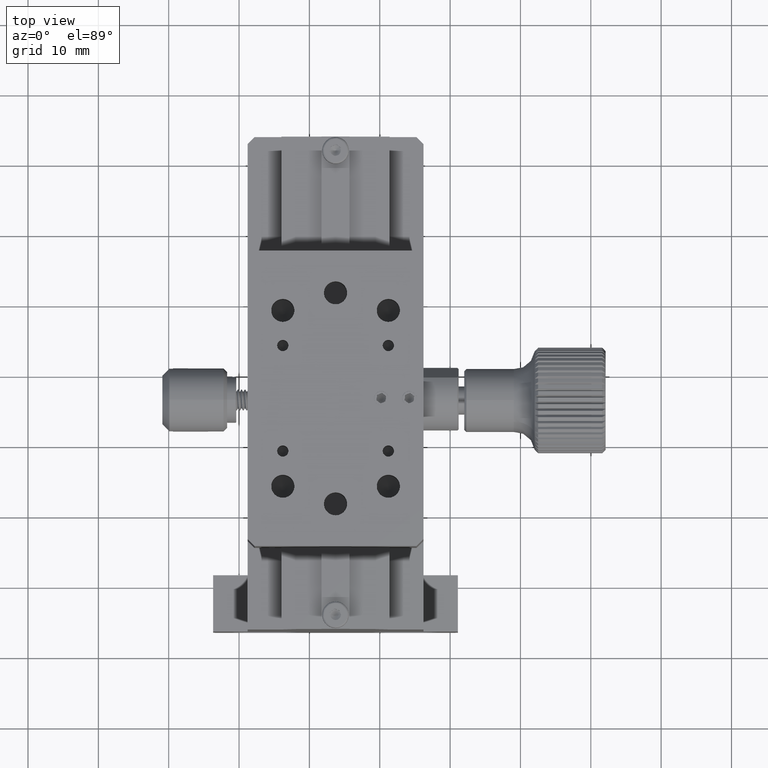
[diagram: clean part render]
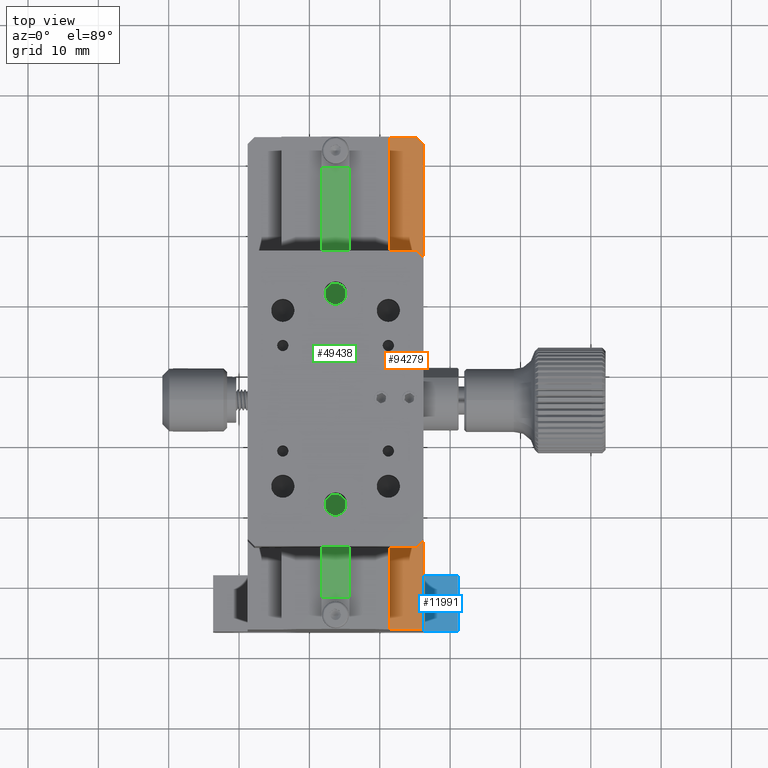
[diagram: same view with three faces highlighted in distinct colors, each labeled with its STEP entity id]
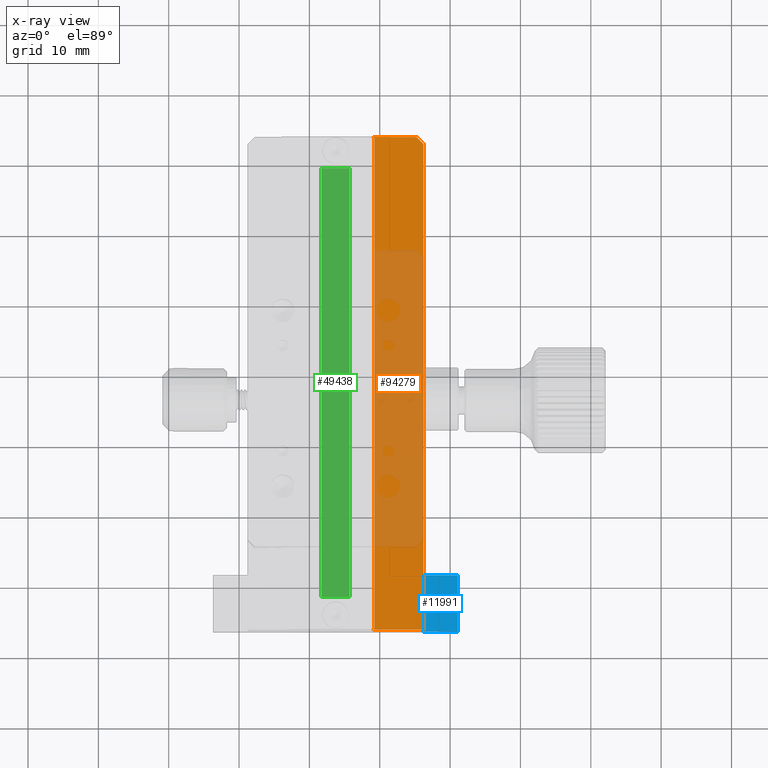
[diagram: x-ray of the same camera — body ghosted, the three highlighted faces saturated]
A machine part, top view with three faces highlighted in distinct colors.
The next image is the same camera in x-ray (body ghosted, the three faces saturated) — at least one of them is partly hidden behind the body in this view.
Their STEP definitions:

[orange] entity #94279 — the highlighted planar face has unit normal (-0, 0, -1).
#90 = CARTESIAN_POINT ( 'NONE',  ( 68.98022867608149511, 13.63550279078390126, 73.45689688578997334 ) ) ;
#8041 = CARTESIAN_POINT ( 'NONE',  ( 76.21116878375734416, 83.63550279078400251, 73.45689688578997334 ) ) ;
#8683 = CARTESIAN_POINT ( 'NONE',  ( 69.11551025906210555, 83.63550279078391725, 73.45689688579071230 ) ) ;
#9826 = CARTESIAN_POINT ( 'NONE',  ( 69.21116878375735837, 83.55266007830925901, 73.45689688579071230 ) ) ;
#12445 = CARTESIAN_POINT ( 'NONE',  ( 69.21116878375735837, 83.63550279078391725, 73.45689688579071230 ) ) ;
#12684 = LINE ( 'NONE', #49763, #64024 ) ;
#13996 = CARTESIAN_POINT ( 'NONE',  ( 69.21116878375735837, 83.63550279078391725, 73.45689688579071230 ) ) ;
#14966 = ORIENTED_EDGE ( 'NONE', *, *, #76726, .F. ) ;
#18908 = CARTESIAN_POINT ( 'NONE',  ( 69.11551025906210555, 13.63550279078390659, 73.45689688578997334 ) ) ;
#23339 = VECTOR ( 'NONE', #68917, 1000.000000000000114 ) ;
#25584 = CARTESIAN_POINT ( 'NONE',  ( 69.21116878375735837, 83.43550279078390020, 73.45689688579071230 ) ) ;
#26352 = CARTESIAN_POINT ( 'NONE',  ( 69.21116878375735837, 83.43550279078390020, 73.45689688579071230 ) ) ;
#27922 = CARTESIAN_POINT ( 'NONE',  ( 69.21116878375735837, 13.83550279078390055, 73.45689688578997334 ) ) ;
#31214 = CARTESIAN_POINT ( 'NONE',  ( 75.21116878375735837, 83.63550279078391725, 73.45689688579071230 ) ) ;
#32861 = VERTEX_POINT ( 'NONE', #54399 ) ;
#33535 = DIRECTION ( 'NONE',  ( -1.000000000000000000, 0.000000000000000000, -0.000000000000000000 ) ) ;
#34637 = EDGE_CURVE ( 'NONE', #82712, #52195, #86596, .T. ) ;
#41257 = PLANE ( 'NONE',  #100707 ) ;
#43573 = VERTEX_POINT ( 'NONE', #107302 ) ;
#46492 = EDGE_CURVE ( 'NONE', #43573, #32861, #12684, .T. ) ;
#47057 = VERTEX_POINT ( 'NONE', #25584 ) ;
#48318 =( BOUNDED_CURVE ( )  B_SPLINE_CURVE ( 3, ( #26352, #9826, #8683, #98813 ),
 .UNSPECIFIED., .F., .F. ) 
 B_SPLINE_CURVE_WITH_KNOTS ( ( 4, 4 ),
 ( 3.141592653589793116, 4.712388980384689674 ),
 .UNSPECIFIED. ) 
 CURVE ( )  GEOMETRIC_REPRESENTATION_ITEM ( )  RATIONAL_B_SPLINE_CURVE ( ( 1.000000000000000000, 0.8047378541243649375, 0.8047378541243649375, 1.000000000000000000 ) ) 
 REPRESENTATION_ITEM ( '' )  );
#49192 = DIRECTION ( 'NONE',  ( -1.000000000000000000, 0.000000000000000000, -0.000000000000000000 ) ) ;
#49763 = CARTESIAN_POINT ( 'NONE',  ( 63.71116878375735126, 13.63550279078389771, 73.45689688578997334 ) ) ;
#51305 = CARTESIAN_POINT ( 'NONE',  ( 76.21116878375734416, 82.63550279078391725, 73.45689688579021492 ) ) ;
#52195 = VERTEX_POINT ( 'NONE', #51305 ) ;
#54399 = CARTESIAN_POINT ( 'NONE',  ( 68.98022867608149511, 13.63550279078390126, 73.45689688578997334 ) ) ;
#55682 = LINE ( 'NONE', #8041, #63137 ) ;
#57219 = FACE_OUTER_BOUND ( 'NONE', #85102, .T. ) ;
#61690 = DIRECTION ( 'NONE',  ( 0.000000000000000000, 1.000000000000000000, 1.047444401652940007E-14 ) ) ;
#61931 = ORIENTED_EDGE ( 'NONE', *, *, #105516, .T. ) ;
#62528 = CARTESIAN_POINT ( 'NONE',  ( 69.21116878375735837, 13.71834550325852398, 73.45689688578997334 ) ) ;
#62678 = ORIENTED_EDGE ( 'NONE', *, *, #113930, .F. ) ;
#63137 = VECTOR ( 'NONE', #71666, 1000.000000000000000 ) ;
#64024 = VECTOR ( 'NONE', #49192, 1000.000000000000000 ) ;
#67143 = CARTESIAN_POINT ( 'NONE',  ( 63.71116878375735126, 83.63550279078390304, 73.45689688579071230 ) ) ;
#68373 = DIRECTION ( 'NONE',  ( 0.000000000000000000, 1.000000000000000000, 1.047444401652940007E-14 ) ) ;
#68917 = DIRECTION ( 'NONE',  ( 0.7071067811865474617, -0.7071067811865474617, -9.813077866773586595E-15 ) ) ;
#71376 = CARTESIAN_POINT ( 'NONE',  ( 69.21116878375735837, 13.83550279078390055, 73.45689688578997334 ) ) ;
#71666 = DIRECTION ( 'NONE',  ( -3.634052786655670085E-30, 1.000000000000000000, 1.260815336390105304E-45 ) ) ;
#72783 = VECTOR ( 'NONE', #33535, 1000.000000000000000 ) ;
#76067 = DIRECTION ( 'NONE',  ( -2.478176394252581141E-16, 1.047444401652940007E-14, -1.000000000000000000 ) ) ;
#76648 = VECTOR ( 'NONE', #61690, 1000.000000000000000 ) ;
#76726 = EDGE_CURVE ( 'NONE', #98917, #47057, #103556, .T. ) ;
#82712 = VERTEX_POINT ( 'NONE', #86588 ) ;
#85102 = EDGE_LOOP ( 'NONE', ( #106153, #112082, #62678, #14966, #110347, #96621, #61931 ) ) ;
#85147 =( BOUNDED_CURVE ( )  B_SPLINE_CURVE ( 3, ( #90, #18908, #62528, #71376 ),
 .UNSPECIFIED., .F., .T. ) 
 B_SPLINE_CURVE_WITH_KNOTS ( ( 4, 4 ),
 ( 4.712388980384689674, 6.283185307179586232 ),
 .UNSPECIFIED. ) 
 CURVE ( )  GEOMETRIC_REPRESENTATION_ITEM ( )  RATIONAL_B_SPLINE_CURVE ( ( 1.000000000000000000, 0.8047378541243649375, 0.8047378541243649375, 1.000000000000000000 ) ) 
 REPRESENTATION_ITEM ( '' )  );
#86588 = CARTESIAN_POINT ( 'NONE',  ( 75.21116878375735837, 83.63550279078391725, 73.45689688579071230 ) ) ;
#86596 = LINE ( 'NONE', #31214, #23339 ) ;
#87401 = EDGE_CURVE ( 'NONE', #32861, #98917, #85147, .T. ) ;
#88535 = EDGE_CURVE ( 'NONE', #82712, #114471, #114266, .T. ) ;
#90699 = CARTESIAN_POINT ( 'NONE',  ( 68.98022867608149511, 83.63550279078390304, 73.45689688579071230 ) ) ;
#94279 = ADVANCED_FACE ( 'NONE', ( #57219 ), #41257, .F. ) ;
#96621 = ORIENTED_EDGE ( 'NONE', *, *, #46492, .F. ) ;
#98813 = CARTESIAN_POINT ( 'NONE',  ( 68.98022867608149511, 83.63550279078390304, 73.45689688579071230 ) ) ;
#98917 = VERTEX_POINT ( 'NONE', #27922 ) ;
#100707 = AXIS2_PLACEMENT_3D ( 'NONE', #12445, #76067, #68373 ) ;
#103556 = LINE ( 'NONE', #13996, #76648 ) ;
#105516 = EDGE_CURVE ( 'NONE', #43573, #52195, #55682, .T. ) ;
#106153 = ORIENTED_EDGE ( 'NONE', *, *, #34637, .F. ) ;
#107302 = CARTESIAN_POINT ( 'NONE',  ( 76.21116878375734416, 13.63550279078401317, 73.45689688578997334 ) ) ;
#110347 = ORIENTED_EDGE ( 'NONE', *, *, #87401, .F. ) ;
#112082 = ORIENTED_EDGE ( 'NONE', *, *, #88535, .T. ) ;
#113930 = EDGE_CURVE ( 'NONE', #47057, #114471, #48318, .T. ) ;
#114266 = LINE ( 'NONE', #67143, #72783 ) ;
#114471 = VERTEX_POINT ( 'NONE', #90699 ) ;

[blue] entity #11991 — the highlighted planar face has unit normal (-0, 0, -1).
#2473 = EDGE_CURVE ( 'NONE', #59863, #4035, #81852, .T. ) ;
#2810 = CARTESIAN_POINT ( 'NONE',  ( 63.71116878375735126, 21.63550279078407002, 56.95689688579005860 ) ) ;
#4035 = VERTEX_POINT ( 'NONE', #53976 ) ;
#11991 = ADVANCED_FACE ( 'NONE', ( #65510 ), #64352, .F. ) ;
#13381 = DIRECTION ( 'NONE',  ( 1.000000000000000000, 0.000000000000000000, 0.000000000000000000 ) ) ;
#13949 = LINE ( 'NONE', #2810, #110119 ) ;
#19421 = AXIS2_PLACEMENT_3D ( 'NONE', #56685, #92042, #19583 ) ;
#19583 = DIRECTION ( 'NONE',  ( 0.000000000000000000, 1.000000000000000000, 1.047444401652940007E-14 ) ) ;
#22684 = CARTESIAN_POINT ( 'NONE',  ( 81.11116878375734984, 13.63550279078407002, 56.95689688578996623 ) ) ;
#27558 = DIRECTION ( 'NONE',  ( -0.000000000000000000, -1.000000000000000000, -1.047444401652940007E-14 ) ) ;
#29379 = DIRECTION ( 'NONE',  ( -1.000000000000000000, 0.000000000000000000, -0.000000000000000000 ) ) ;
#32626 = ORIENTED_EDGE ( 'NONE', *, *, #48954, .T. ) ;
#33565 = ORIENTED_EDGE ( 'NONE', *, *, #104863, .F. ) ;
#34711 = LINE ( 'NONE', #80082, #105505 ) ;
#35837 = CARTESIAN_POINT ( 'NONE',  ( 81.11116878375734984, 13.63550279078407002, 56.95689688578996623 ) ) ;
#46976 = CARTESIAN_POINT ( 'NONE',  ( 81.11116878375734984, 21.63550279078406646, 56.95689688579005860 ) ) ;
#48954 = EDGE_CURVE ( 'NONE', #112268, #4035, #34711, .T. ) ;
#53976 = CARTESIAN_POINT ( 'NONE',  ( 76.21116878375734416, 13.63550279078407002, 56.95689688579003018 ) ) ;
#56685 = CARTESIAN_POINT ( 'NONE',  ( 81.11116878375734984, 13.63550279078407002, 56.95689688578996623 ) ) ;
#57212 = EDGE_LOOP ( 'NONE', ( #32626, #98949, #68471, #33565 ) ) ;
#58518 = VERTEX_POINT ( 'NONE', #46976 ) ;
#59863 = VERTEX_POINT ( 'NONE', #22684 ) ;
#61776 = LINE ( 'NONE', #35837, #84153 ) ;
#64352 = PLANE ( 'NONE',  #19421 ) ;
#65510 = FACE_OUTER_BOUND ( 'NONE', #57212, .T. ) ;
#67738 = CARTESIAN_POINT ( 'NONE',  ( 76.21116878375734416, 21.63550279078405936, 56.95689688579005860 ) ) ;
#68471 = ORIENTED_EDGE ( 'NONE', *, *, #88960, .F. ) ;
#80082 = CARTESIAN_POINT ( 'NONE',  ( 76.21116878375734416, 83.63550279078400251, 56.95689688579005860 ) ) ;
#81852 = LINE ( 'NONE', #111855, #89851 ) ;
#84153 = VECTOR ( 'NONE', #27558, 1000.000000000000000 ) ;
#88960 = EDGE_CURVE ( 'NONE', #58518, #59863, #61776, .T. ) ;
#89851 = VECTOR ( 'NONE', #29379, 1000.000000000000000 ) ;
#92042 = DIRECTION ( 'NONE',  ( -8.850629979473503793E-16, 1.047444401652940007E-14, -1.000000000000000000 ) ) ;
#98949 = ORIENTED_EDGE ( 'NONE', *, *, #2473, .F. ) ;
#104863 = EDGE_CURVE ( 'NONE', #112268, #58518, #13949, .T. ) ;
#105505 = VECTOR ( 'NONE', #107184, 1000.000000000000000 ) ;
#107184 = DIRECTION ( 'NONE',  ( 3.634052786655670085E-30, -1.000000000000000000, -1.260815336390105304E-45 ) ) ;
#110119 = VECTOR ( 'NONE', #13381, 1000.000000000000000 ) ;
#111855 = CARTESIAN_POINT ( 'NONE',  ( 63.71116878375735126, 13.63550279078407002, 56.95689688578996623 ) ) ;
#112268 = VERTEX_POINT ( 'NONE', #67738 ) ;

[green] entity #49438 — the highlighted planar face has unit normal (-0, 0, -1).
#2264 = DIRECTION ( 'NONE',  ( -8.673617379884003918E-16, 1.047444401652940007E-14, -1.000000000000000000 ) ) ;
#6621 = EDGE_LOOP ( 'NONE', ( #71120, #11983, #53294, #77347 ) ) ;
#9524 = VECTOR ( 'NONE', #116614, 1000.000000000000000 ) ;
#11983 = ORIENTED_EDGE ( 'NONE', *, *, #47009, .F. ) ;
#14421 = DIRECTION ( 'NONE',  ( 1.226388855162029486E-29, -1.000000000000000000, -1.063722768862942514E-44 ) ) ;
#17631 = LINE ( 'NONE', #80669, #9524 ) ;
#23555 = VERTEX_POINT ( 'NONE', #77182 ) ;
#26356 = DIRECTION ( 'NONE',  ( -1.000000000000000000, -9.085131966639141230E-30, 8.673617379884003918E-16 ) ) ;
#27067 = DIRECTION ( 'NONE',  ( 1.000000000000000000, 9.085131966639141230E-30, -8.673617379884003918E-16 ) ) ;
#34609 = CARTESIAN_POINT ( 'NONE',  ( 59.71116878375735126, 18.13550279078385330, 78.93189688579003871 ) ) ;
#34864 = EDGE_CURVE ( 'NONE', #74250, #47793, #107796, .T. ) ;
#46423 = DIRECTION ( 'NONE',  ( 0.000000000000000000, 1.000000000000000000, 1.047444401652940007E-14 ) ) ;
#47009 = EDGE_CURVE ( 'NONE', #47793, #78140, #86893, .T. ) ;
#47793 = VERTEX_POINT ( 'NONE', #57745 ) ;
#49438 = ADVANCED_FACE ( 'NONE', ( #72974 ), #82373, .F. ) ;
#52866 = CARTESIAN_POINT ( 'NONE',  ( 61.71116878375735126, 79.13550279078384619, 78.93189688579052188 ) ) ;
#53294 = ORIENTED_EDGE ( 'NONE', *, *, #34864, .F. ) ;
#57745 = CARTESIAN_POINT ( 'NONE',  ( 65.71116878375734416, 79.13550279078384619, 78.93189688579067820 ) ) ;
#62363 = AXIS2_PLACEMENT_3D ( 'NONE', #73557, #2264, #46423 ) ;
#64711 = VECTOR ( 'NONE', #27067, 1000.000000000000000 ) ;
#71120 = ORIENTED_EDGE ( 'NONE', *, *, #74188, .F. ) ;
#72974 = FACE_OUTER_BOUND ( 'NONE', #6621, .T. ) ;
#73557 = CARTESIAN_POINT ( 'NONE',  ( 59.71116878375735126, 83.63550279078386041, 78.93189688579072083 ) ) ;
#74188 = EDGE_CURVE ( 'NONE', #78140, #23555, #95926, .T. ) ;
#74250 = VERTEX_POINT ( 'NONE', #52866 ) ;
#75149 = CARTESIAN_POINT ( 'NONE',  ( 65.71116878375734416, 83.63550279078386041, 78.93189688579067820 ) ) ;
#77182 = CARTESIAN_POINT ( 'NONE',  ( 61.71116878375735126, 18.13550279078385330, 78.93189688579003871 ) ) ;
#77347 = ORIENTED_EDGE ( 'NONE', *, *, #112729, .F. ) ;
#78140 = VERTEX_POINT ( 'NONE', #99452 ) ;
#79190 = VECTOR ( 'NONE', #14421, 1000.000000000000000 ) ;
#80669 = CARTESIAN_POINT ( 'NONE',  ( 61.71116878375735126, 83.63550279078386041, 78.93189688579072083 ) ) ;
#82373 = PLANE ( 'NONE',  #62363 ) ;
#86893 = LINE ( 'NONE', #75149, #79190 ) ;
#95926 = LINE ( 'NONE', #34609, #115028 ) ;
#99452 = CARTESIAN_POINT ( 'NONE',  ( 65.71116878375734416, 18.13550279078385330, 78.93189688579019503 ) ) ;
#99518 = CARTESIAN_POINT ( 'NONE',  ( 59.71116878375735126, 79.13550279078384619, 78.93189688579067820 ) ) ;
#107796 = LINE ( 'NONE', #99518, #64711 ) ;
#112729 = EDGE_CURVE ( 'NONE', #23555, #74250, #17631, .T. ) ;
#115028 = VECTOR ( 'NONE', #26356, 1000.000000000000000 ) ;
#116614 = DIRECTION ( 'NONE',  ( 0.000000000000000000, 1.000000000000000000, 1.047444401652940007E-14 ) ) ;